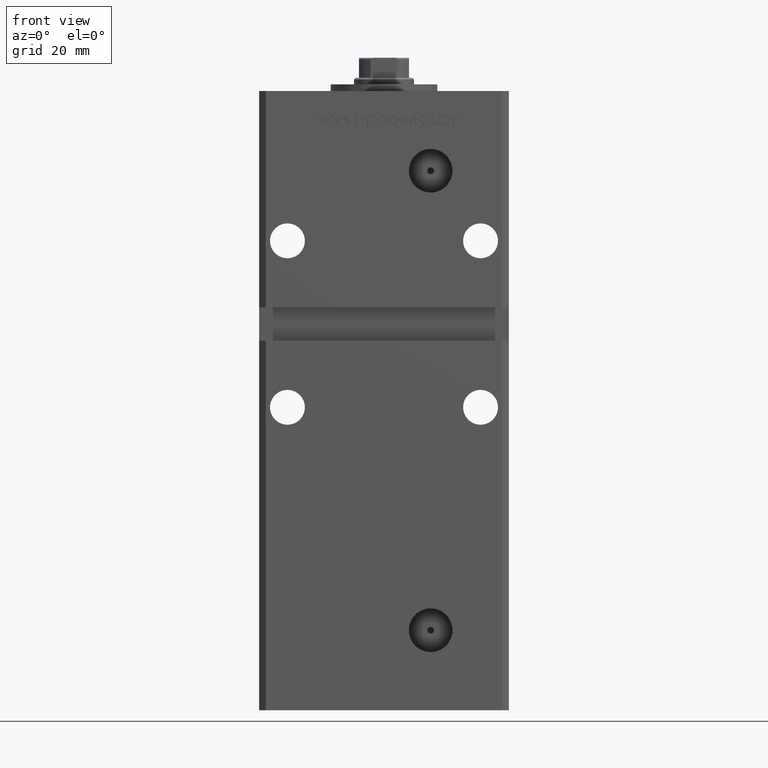
[diagram: clean part render]
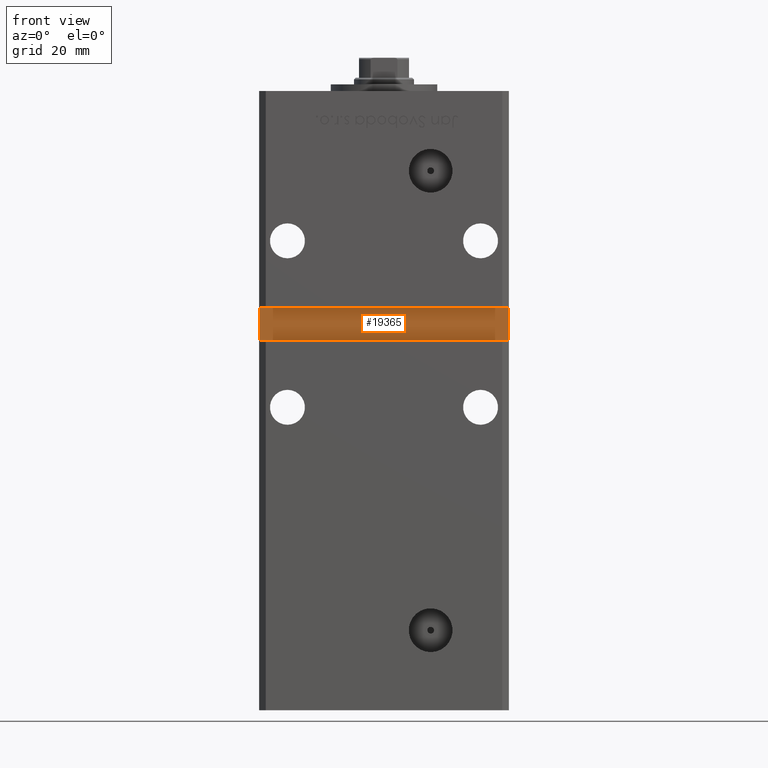
[diagram: same view with one face highlighted and labeled with its STEP entity id]
A machine part, front view. The second image highlights one B-rep face of the part: STEP entity #19365.
In plain terms, the highlighted planar face has unit normal (0, -1, 0).
Its self-contained STEP definition (entity closure, byte-faithful):
#828 = EDGE_CURVE ( 'NONE', #33083, #33794, #43511, .T. ) ;
#1680 = EDGE_CURVE ( 'NONE', #35993, #33074, #22866, .T. ) ;
#1702 = DIRECTION ( 'NONE',  ( -0.000000000000000000, -0.000000000000000000, 1.000000000000000000 ) ) ;
#1965 = CARTESIAN_POINT ( 'NONE',  ( 37.49999999999999289, -27.50000000000000000, 106.0000000000000000 ) ) ;
#6454 = CARTESIAN_POINT ( 'NONE',  ( -37.49999999999999289, -27.50000000000000000, 106.0000000000000000 ) ) ;
#7042 = VECTOR ( 'NONE', #37747, 1000.000000000000000 ) ;
#7417 = DIRECTION ( 'NONE',  ( 0.000000000000000000, -0.000000000000000000, -1.000000000000000000 ) ) ;
#8469 = VECTOR ( 'NONE', #14782, 1000.000000000000000 ) ;
#10606 = ORIENTED_EDGE ( 'NONE', *, *, #828, .T. ) ;
#13171 = EDGE_CURVE ( 'NONE', #33074, #33083, #49874, .T. ) ;
#14782 = DIRECTION ( 'NONE',  ( -1.000000000000000000, -0.000000000000000000, -0.000000000000000000 ) ) ;
#17844 = CARTESIAN_POINT ( 'NONE',  ( -37.49999999999999289, -27.50000000000000000, 106.0000000000000000 ) ) ;
#19365 = ADVANCED_FACE ( 'NONE', ( #31357 ), #39698, .T. ) ;
#20276 = ORIENTED_EDGE ( 'NONE', *, *, #1680, .T. ) ;
#22866 = LINE ( 'NONE', #6454, #8469 ) ;
#24102 = DIRECTION ( 'NONE',  ( 0.000000000000000000, -1.000000000000000000, 0.000000000000000000 ) ) ;
#25550 = ORIENTED_EDGE ( 'NONE', *, *, #49397, .T. ) ;
#28327 = EDGE_LOOP ( 'NONE', ( #25550, #20276, #32692, #10606 ) ) ;
#28629 = CARTESIAN_POINT ( 'NONE',  ( -37.49999999999999289, -27.50000000000000000, 106.0000000000000000 ) ) ;
#29616 = CARTESIAN_POINT ( 'NONE',  ( 37.49999999999999289, -27.50000000000000000, 96.00000000000000000 ) ) ;
#31357 = FACE_OUTER_BOUND ( 'NONE', #28327, .T. ) ;
#32656 = CARTESIAN_POINT ( 'NONE',  ( -37.49999999999999289, -27.50000000000000000, 96.00000000000000000 ) ) ;
#32692 = ORIENTED_EDGE ( 'NONE', *, *, #13171, .T. ) ;
#33074 = VERTEX_POINT ( 'NONE', #28629 ) ;
#33083 = VERTEX_POINT ( 'NONE', #32656 ) ;
#33794 = VERTEX_POINT ( 'NONE', #29616 ) ;
#34047 = VECTOR ( 'NONE', #1702, 1000.000000000000000 ) ;
#35454 = CARTESIAN_POINT ( 'NONE',  ( 37.49999999999999289, -27.50000000000000000, 106.0000000000000000 ) ) ;
#35993 = VERTEX_POINT ( 'NONE', #35454 ) ;
#37747 = DIRECTION ( 'NONE',  ( 0.000000000000000000, 0.000000000000000000, -1.000000000000000000 ) ) ;
#39698 = PLANE ( 'NONE',  #39938 ) ;
#39723 = DIRECTION ( 'NONE',  ( 1.000000000000000000, 0.000000000000000000, 0.000000000000000000 ) ) ;
#39938 = AXIS2_PLACEMENT_3D ( 'NONE', #48306, #24102, #7417 ) ;
#43511 = LINE ( 'NONE', #44043, #53216 ) ;
#44043 = CARTESIAN_POINT ( 'NONE',  ( -37.49999999999999289, -27.50000000000000000, 96.00000000000000000 ) ) ;
#48306 = CARTESIAN_POINT ( 'NONE',  ( 0.000000000000000000, -27.50000000000000000, 0.000000000000000000 ) ) ;
#49315 = LINE ( 'NONE', #1965, #34047 ) ;
#49397 = EDGE_CURVE ( 'NONE', #33794, #35993, #49315, .T. ) ;
#49874 = LINE ( 'NONE', #17844, #7042 ) ;
#53216 = VECTOR ( 'NONE', #39723, 1000.000000000000000 ) ;